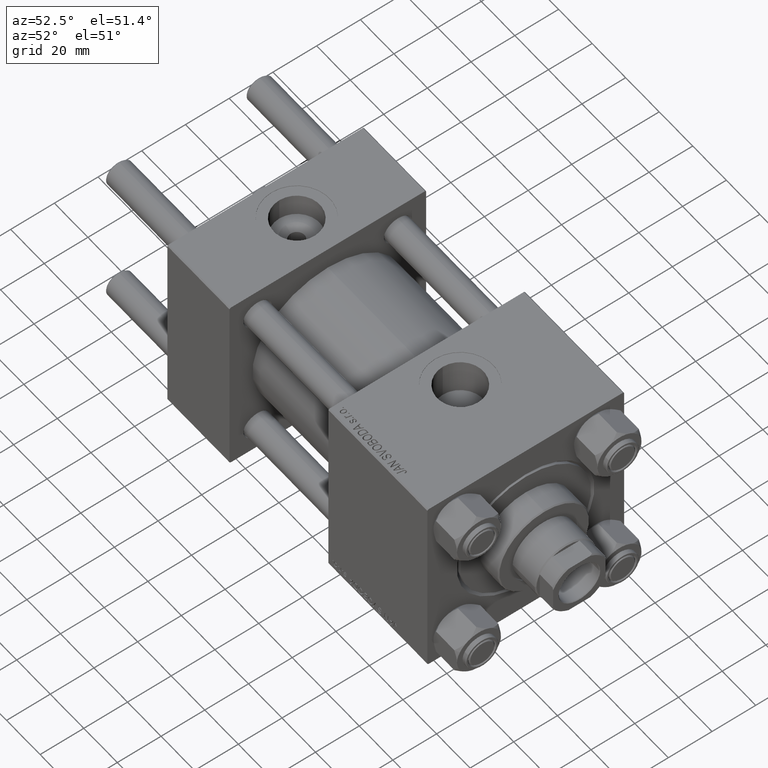
[diagram: clean part render]
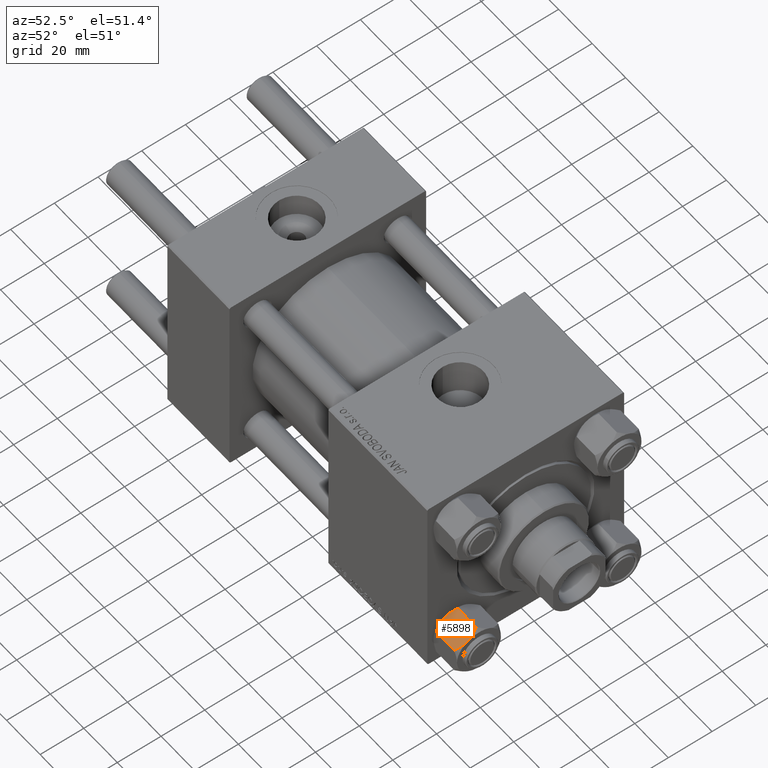
[diagram: same view with one face highlighted and labeled with its STEP entity id]
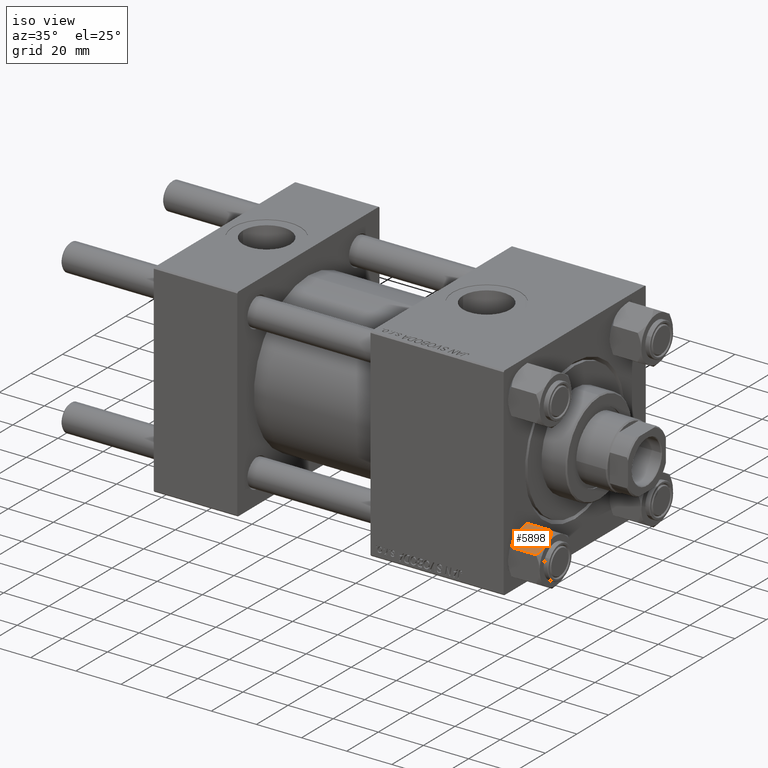
[diagram: same view with one face highlighted and labeled with its STEP entity id]
A machine part, auxiliary view. The second image highlights one B-rep face of the part: STEP entity #5898.
A second angle (iso view) of the same face is appended — the face is thin or edge-on in the first view.
In plain terms, the highlighted planar face has unit normal (0, 0.5, -0.866).
Its self-contained STEP definition (entity closure, byte-faithful):
#722 = ORIENTED_EDGE ( 'NONE', *, *, #44629, .T. ) ;
#832 = EDGE_CURVE ( 'NONE', #30850, #29762, #48248, .T. ) ;
#2040 = CARTESIAN_POINT ( 'NONE',  ( 9.716999946243694453, -3.296092779912219495, -0.1545239700039907904 ) ) ;
#2301 = CARTESIAN_POINT ( 'NONE',  ( 8.714999999999999858, -5.031607595987580339, 0.000000000000000000 ) ) ;
#2534 = EDGE_CURVE ( 'NONE', #29762, #41875, #16951, .T. ) ;
#3063 = VECTOR ( 'NONE', #49202, 1000.000000000000000 ) ;
#3066 = CARTESIAN_POINT ( 'NONE',  ( 7.713000053756312369, -6.767122412062945180, -13.84547602999601068 ) ) ;
#3148 = CARTESIAN_POINT ( 'NONE',  ( 5.810000000000005826, -10.06321519197517489, -14.00000000000000000 ) ) ;
#4560 = B_SPLINE_CURVE_WITH_KNOTS ( 'NONE', 3,
 ( #2301, #33030, #2040, #48112, #21684, #13646 ),
 .UNSPECIFIED., .F., .F.,
 ( 4, 2, 4 ),
 ( 0.006022845781655591577, 0.009013049135303635023, 0.01200325248895168020 ),
 .UNSPECIFIED. ) ;
#5617 = CARTESIAN_POINT ( 'NONE',  ( 11.61999999999999922, 7.247075248837498561E-15, -1.556784808024820999 ) ) ;
#5898 = ADVANCED_FACE ( 'NONE', ( #37456 ), #9773, .F. ) ;
#6262 = VERTEX_POINT ( 'NONE', #18320 ) ;
#6737 = CARTESIAN_POINT ( 'NONE',  ( 8.714999999999999858, -5.031607595987580339, -14.00000000000000000 ) ) ;
#7216 = CARTESIAN_POINT ( 'NONE',  ( 11.61999999999999922, 7.017202701192663836E-15, -14.00000000000000000 ) ) ;
#8413 = CARTESIAN_POINT ( 'NONE',  ( 8.714999999999999858, -5.031607595987580339, 0.000000000000000000 ) ) ;
#9773 = PLANE ( 'NONE',  #22704 ) ;
#10241 = CARTESIAN_POINT ( 'NONE',  ( 9.974696630283192533, -2.849749030213785783, -13.69973261901325223 ) ) ;
#10486 = CARTESIAN_POINT ( 'NONE',  ( 8.714999999999999858, -5.031607595987580339, -14.00000000000000000 ) ) ;
#11872 = VERTEX_POINT ( 'NONE', #5617 ) ;
#11948 = CARTESIAN_POINT ( 'NONE',  ( 5.810000000000005826, -10.06321519197517489, -1.556784808024824107 ) ) ;
#12350 = ORIENTED_EDGE ( 'NONE', *, *, #832, .F. ) ;
#12963 = ORIENTED_EDGE ( 'NONE', *, *, #30642, .F. ) ;
#13418 = CARTESIAN_POINT ( 'NONE',  ( 5.810000000000006715, -10.06321519197517489, -12.44321519197517745 ) ) ;
#13646 = CARTESIAN_POINT ( 'NONE',  ( 11.61999999999999922, 7.247075248837498561E-15, -1.556784808024820999 ) ) ;
#14047 = DIRECTION ( 'NONE',  ( -0.8660254037844390407, 0.4999999999999992784, 0.000000000000000000 ) ) ;
#14160 = CARTESIAN_POINT ( 'NONE',  ( 6.733375043383501790, -8.463882702393838997, -13.28854452935654074 ) ) ;
#14771 = LINE ( 'NONE', #7216, #29569 ) ;
#16951 = B_SPLINE_CURVE_WITH_KNOTS ( 'NONE', 3,
 ( #48625, #22204, #3066, #14160, #32552, #13418 ),
 .UNSPECIFIED., .F., .F.,
 ( 4, 2, 4 ),
 ( 0.006022845781655584638, 0.009013049135303633289, 0.01200325248895168020 ),
 .UNSPECIFIED. ) ;
#17558 = CARTESIAN_POINT ( 'NONE',  ( 9.227666995912102266, -4.143642311704116565, -13.96005881939308324 ) ) ;
#18320 = CARTESIAN_POINT ( 'NONE',  ( 8.714999999999999858, -5.031607595987580339, 0.000000000000000000 ) ) ;
#21547 = EDGE_LOOP ( 'NONE', ( #12350, #722, #38472, #12963, #27431, #28331 ) ) ;
#21684 = CARTESIAN_POINT ( 'NONE',  ( 11.16498164529022219, -0.7881149087337221415, -1.101766453314959815 ) ) ;
#22204 = CARTESIAN_POINT ( 'NONE',  ( 8.209704053696578185, -5.906805847843720869, -14.00000000000000178 ) ) ;
#22704 = AXIS2_PLACEMENT_3D ( 'NONE', #48276, #14047, #32950 ) ;
#22762 = CARTESIAN_POINT ( 'NONE',  ( 8.202333004087906332, -5.919572880271047666, -0.03994118060691484451 ) ) ;
#23520 = CARTESIAN_POINT ( 'NONE',  ( 8.460569896449625205, -5.472293462311858647, -5.260074602449206683E-15 ) ) ;
#25599 = CARTESIAN_POINT ( 'NONE',  ( 8.969430103550388722, -4.590921729663307360, -13.99999999999999822 ) ) ;
#27051 = CARTESIAN_POINT ( 'NONE',  ( 6.731401448974994928, -8.467301068182910839, -0.7141438259524746091 ) ) ;
#27431 = ORIENTED_EDGE ( 'NONE', *, *, #46242, .F. ) ;
#28331 = ORIENTED_EDGE ( 'NONE', *, *, #2534, .F. ) ;
#28543 = B_SPLINE_CURVE_WITH_KNOTS ( 'NONE', 3,
 ( #11948, #38129, #27051, #34358, #42390, #22762, #23520, #8413 ),
 .UNSPECIFIED., .F., .F.,
 ( 4, 2, 2, 4 ),
 ( 2.544312114906334931E-07, 0.003011550106433540791, 0.004517197944044565316, 0.006022845781655591577 ),
 .UNSPECIFIED. ) ;
#29569 = VECTOR ( 'NONE', #42439, 1000.000000000000000 ) ;
#29762 = VERTEX_POINT ( 'NONE', #6737 ) ;
#29811 = VERTEX_POINT ( 'NONE', #35198 ) ;
#30297 = EDGE_CURVE ( 'NONE', #6262, #11872, #4560, .T. ) ;
#30642 = EDGE_CURVE ( 'NONE', #29811, #6262, #28543, .T. ) ;
#30850 = VERTEX_POINT ( 'NONE', #32309 ) ;
#32309 = CARTESIAN_POINT ( 'NONE',  ( 11.61999999999999922, 7.035126978385350964E-15, -12.44321519197517922 ) ) ;
#32552 = CARTESIAN_POINT ( 'NONE',  ( 6.265018354709780191, -9.275100283241444643, -12.89823354668503796 ) ) ;
#32950 = DIRECTION ( 'NONE',  ( -0.4999999999999992784, -0.8660254037844390407, 0.000000000000000000 ) ) ;
#33030 = CARTESIAN_POINT ( 'NONE',  ( 9.220295946303432189, -4.156409344131445138, -5.153348451095161685E-15 ) ) ;
#34358 = CARTESIAN_POINT ( 'NONE',  ( 7.455303369716811623, -7.213466161761380668, -0.3002673809867457688 ) ) ;
#35198 = CARTESIAN_POINT ( 'NONE',  ( 5.810000000000005826, -10.06321519197517489, -1.556784808024824107 ) ) ;
#37456 = FACE_OUTER_BOUND ( 'NONE', #21547, .T. ) ;
#37656 = LINE ( 'NONE', #3148, #3063 ) ;
#38129 = CARTESIAN_POINT ( 'NONE',  ( 6.265545725125289067, -9.274186850887373268, -1.101239082899541755 ) ) ;
#38472 = ORIENTED_EDGE ( 'NONE', *, *, #30297, .F. ) ;
#41875 = VERTEX_POINT ( 'NONE', #47760 ) ;
#42390 = CARTESIAN_POINT ( 'NONE',  ( 7.700834831386349499, -6.788193195293088955, -0.1903979688073487719 ) ) ;
#42439 = DIRECTION ( 'NONE',  ( -0.000000000000000000, -0.000000000000000000, 1.000000000000000000 ) ) ;
#44458 = CARTESIAN_POINT ( 'NONE',  ( 11.61999999999999922, 7.035126978385350964E-15, -12.44321519197517922 ) ) ;
#44629 = EDGE_CURVE ( 'NONE', #30850, #11872, #14771, .T. ) ;
#44709 = CARTESIAN_POINT ( 'NONE',  ( 10.69859855102501456, -1.595914123792257389, -13.28585617404752917 ) ) ;
#44959 = CARTESIAN_POINT ( 'NONE',  ( 11.16445427487471598, -0.7890283410877895198, -12.89876091710045891 ) ) ;
#46242 = EDGE_CURVE ( 'NONE', #41875, #29811, #37656, .T. ) ;
#47760 = CARTESIAN_POINT ( 'NONE',  ( 5.810000000000006715, -10.06321519197517489, -12.44321519197517745 ) ) ;
#48112 = CARTESIAN_POINT ( 'NONE',  ( 10.69662495661650325, -1.599332489581326122, -0.7114554706434562670 ) ) ;
#48248 = B_SPLINE_CURVE_WITH_KNOTS ( 'NONE', 3,
 ( #44458, #44959, #44709, #10241, #49226, #17558, #25599, #10486 ),
 .UNSPECIFIED., .F., .F.,
 ( 4, 2, 2, 4 ),
 ( 2.544312114905220024E-07, 0.003011550106433536454, 0.004517197944044560980, 0.006022845781655584638 ),
 .UNSPECIFIED. ) ;
#48276 = CARTESIAN_POINT ( 'NONE',  ( 11.61999999999999922, 7.017202701192663836E-15, -14.00000000000000000 ) ) ;
#48625 = CARTESIAN_POINT ( 'NONE',  ( 8.714999999999999858, -5.031607595987580339, -14.00000000000000000 ) ) ;
#49202 = DIRECTION ( 'NONE',  ( -0.000000000000000000, -0.000000000000000000, 1.000000000000000000 ) ) ;
#49226 = CARTESIAN_POINT ( 'NONE',  ( 9.729165168613659986, -3.275021996682075276, -13.80960203119265195 ) ) ;